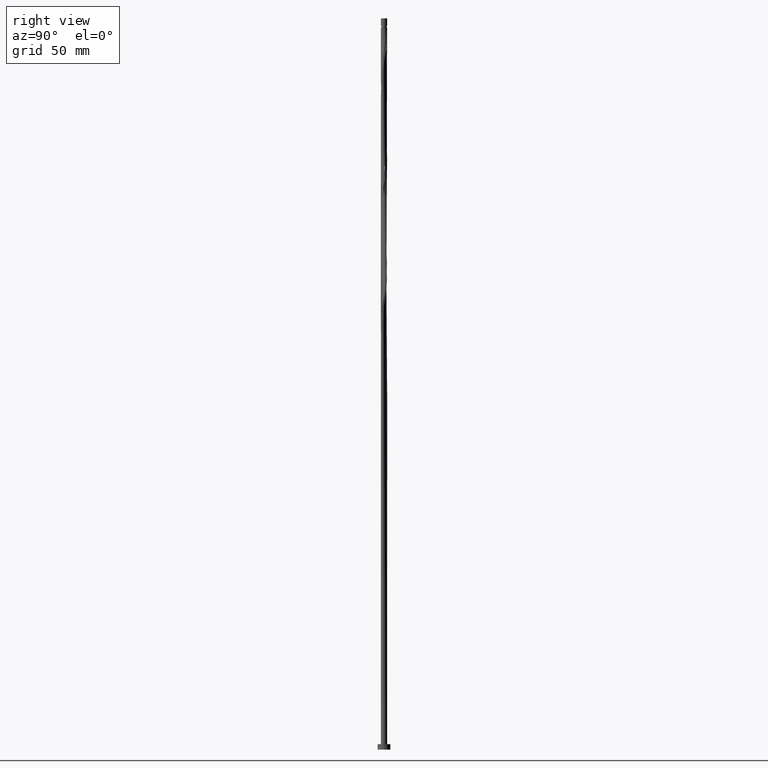
[diagram: clean part render]
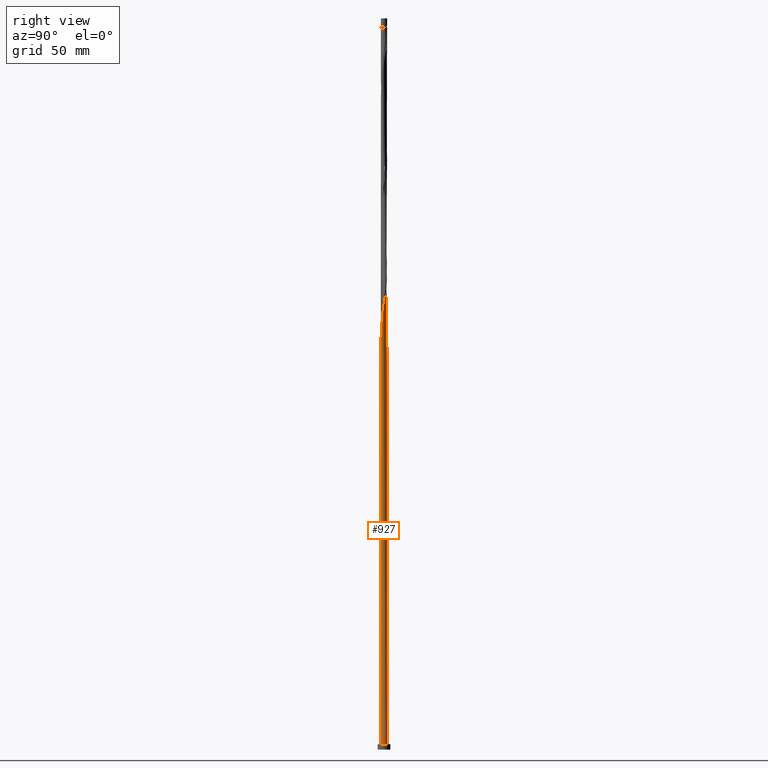
[diagram: same view with one face highlighted and labeled with its STEP entity id]
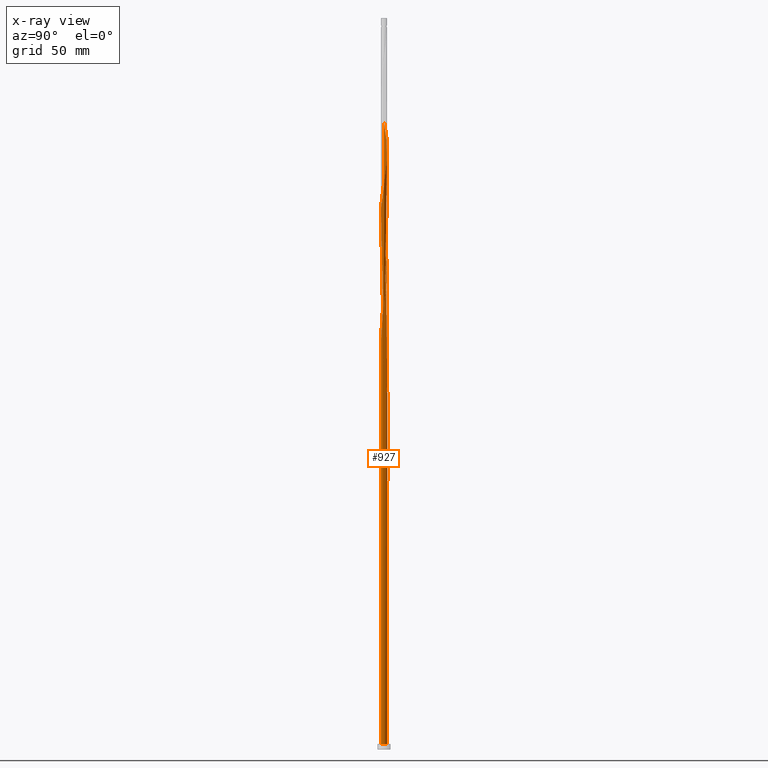
[diagram: x-ray of the same camera — body ghosted, the highlighted face saturated]
A machine part, right view. The second image highlights one B-rep face of the part: STEP entity #927.
The next image is the same camera in x-ray: the body ghosted, the highlighted face saturated — about 0% of this face is hidden behind the body in this view.
In plain terms, the highlighted cylindrical surface (bore or boss wall) has radius 1.75 mm, axis along (-0, -0, -1).
Its self-contained STEP definition (entity closure, byte-faithful):
#3 = CARTESIAN_POINT ( 'NONE',  ( -1.750000000000000000, -1.644325696273075192E-16, 213.9816421502443404 ) ) ;
#8 = CARTESIAN_POINT ( 'NONE',  ( 1.750000000000000000, 0.000000000000000000, 3.000000000000000000 ) ) ;
#17 = CARTESIAN_POINT ( 'NONE',  ( -1.289788318714685467, 1.182770515741389694, 201.8561989067228239 ) ) ;
#32 = CARTESIAN_POINT ( 'NONE',  ( -1.311110765996650995, 1.159089538943249176, 206.3006433511672526 ) ) ;
#55 = CARTESIAN_POINT ( 'NONE',  ( 0.1679918395066848369, -1.751602087786618744, 227.4117544622783669 ) ) ;
#64 = CARTESIAN_POINT ( 'NONE',  ( -1.432935985591729411, -1.021286244534576726, 216.3006433511672810 ) ) ;
#81 = CARTESIAN_POINT ( 'NONE',  ( 1.289788318714685245, -1.182770515741389694, 235.1895322400560815 ) ) ;
#87 = VERTEX_POINT ( 'NONE', #8 ) ;
#89 = CARTESIAN_POINT ( 'NONE',  ( 1.759566557101713169, -0.01602071186015805240, 309.6339766845006238 ) ) ;
#95 = EDGE_CURVE ( 'NONE', #1775, #1219, #1181, .T. ) ;
#101 = CARTESIAN_POINT ( 'NONE',  ( 1.523448115906757661, 0.8611653953452614862, 315.1895322400561099 ) ) ;
#109 = CARTESIAN_POINT ( 'NONE',  ( 1.289788318714685245, -1.182770515741389694, 301.8561989067228524 ) ) ;
#119 = CARTESIAN_POINT ( 'NONE',  ( 0.8936576220084644362, 1.515818982169525819, 254.0784211289450809 ) ) ;
#130 = EDGE_CURVE ( 'NONE', #1161, #1868, #234, .T. ) ;
#131 = CARTESIAN_POINT ( 'NONE',  ( 1.600927825098414914, -0.7303158432520420185, 305.1895322400561099 ) ) ;
#139 = CARTESIAN_POINT ( 'NONE',  ( -0.3482456029873203240, 1.715000000000002078, 328.5228655733894811 ) ) ;
#155 = CARTESIAN_POINT ( 'NONE',  ( -0.5589725712885340592, 1.668496567759837124, 200.7450877956117381 ) ) ;
#169 = CARTESIAN_POINT ( 'NONE',  ( -1.750000000000003109, 0.09970404053125621335, 209.1251643538167571 ) ) ;
#175 = LINE ( 'NONE', #1198, #889 ) ;
#177 = CARTESIAN_POINT ( 'NONE',  ( -1.659356368983974317, 0.5559104610567515703, 206.3006433511672526 ) ) ;
#183 = ORIENTED_EDGE ( 'NONE', *, *, #1315, .F. ) ;
#186 = CARTESIAN_POINT ( 'NONE',  ( -1.724446699451429366, 0.3501638371253399384, 211.8561989067228239 ) ) ;
#193 = CARTESIAN_POINT ( 'NONE',  ( -1.613960246221785244, -0.7010445461559460245, 214.0784211289450525 ) ) ;
#201 = CARTESIAN_POINT ( 'NONE',  ( -0.8936576220084635480, -1.515818982169526485, 220.7450877956116528 ) ) ;
#213 = CARTESIAN_POINT ( 'NONE',  ( 1.724446699451432474, 0.3501638371253398829, 245.1895322400561383 ) ) ;
#229 = CARTESIAN_POINT ( 'NONE',  ( -1.311110765996653882, -1.159089538943250286, 217.4117544622783669 ) ) ;
#234 =( BOUNDED_CURVE ( )  B_SPLINE_CURVE ( 2, ( #893, #909, #1330, #1750, #1043, #464, #17, #1477, #1620, #313, #177, #901, #444, #169, #745 ),
 .UNSPECIFIED., .F., .T. ) 
 B_SPLINE_CURVE_WITH_KNOTS ( ( 3, 2, 2, 2, 2, 2, 2, 3 ),
 ( 0.000000000000000000, 0.008333333333333303727, 0.01666666666666671848, 0.02500000000000002220, 0.03333333333333332593, 0.04166666666666662966, 0.05000000000000004441, 0.05452860127731142675 ),
 .UNSPECIFIED. ) 
 CURVE ( )  GEOMETRIC_REPRESENTATION_ITEM ( )  RATIONAL_B_SPLINE_CURVE ( ( 0.9090909090909996548, 0.9041108139712475955, 0.9090909090909996548, 0.9041108139712475955, 0.9090909090909996548, 0.9041108139712475955, 0.9090909090909996548, 0.9041108139712475955, 0.9090909090909996548, 0.9041108139712475955, 0.9090909090909996548, 0.9041108139712475955, 0.9090909090909996548, 0.9063845652765466498, 0.9066196499552878763 ) ) 
 REPRESENTATION_ITEM ( '' )  );
#240 = CARTESIAN_POINT ( 'NONE',  ( -0.5589725712885357245, -1.668496567759839122, 289.6339766845006238 ) ) ;
#251 = CARTESIAN_POINT ( 'NONE',  ( -1.724446699451432474, -0.3501638371253400495, 278.5228655733894243 ) ) ;
#260 = CARTESIAN_POINT ( 'NONE',  ( -1.189285546401577909, -1.296892833351923846, 285.1895322400561668 ) ) ;
#272 = CARTESIAN_POINT ( 'NONE',  ( -1.600927825098414914, 0.7303158432520415744, 271.8561989067227955 ) ) ;
#281 = CARTESIAN_POINT ( 'NONE',  ( -0.01593294872431327489, -1.749927467395422820, 292.9673100178339382 ) ) ;
#290 = CARTESIAN_POINT ( 'NONE',  ( -0.8659089350932497320, 1.531839694029684340, 331.8561989067226818 ) ) ;
#312 = CARTESIAN_POINT ( 'NONE',  ( 0.3482456029873208236, 1.714999999999998970, 195.1895322400561383 ) ) ;
#313 = CARTESIAN_POINT ( 'NONE',  ( -1.600927825098414914, 0.7303158432520415744, 205.1895322400561099 ) ) ;
#318 = CARTESIAN_POINT ( 'NONE',  ( 0.000000000000000000, 0.000000000000000000, 3.000000000000000000 ) ) ;
#324 = EDGE_CURVE ( 'NONE', #1161, #425, #783, .T. ) ;
#338 = CARTESIAN_POINT ( 'NONE',  ( -1.750000000000003109, 1.016492248605165992E-15, 209.7307556632012790 ) ) ;
#348 = CARTESIAN_POINT ( 'NONE',  ( -1.669203472836609414, -0.5256041916406432035, 212.9673100178338530 ) ) ;
#367 = CARTESIAN_POINT ( 'NONE',  ( 0.5284993664679552561, -1.678397912213386300, 229.6339766845005670 ) ) ;
#369 = ORIENTED_EDGE ( 'NONE', *, *, #1265, .T. ) ;
#377 = CARTESIAN_POINT ( 'NONE',  ( -0.1998577369553107552, -1.748252847004226451, 225.1895322400561383 ) ) ;
#386 = CARTESIAN_POINT ( 'NONE',  ( 0.3794151541219242252, 1.708374707382032343, 257.4117544622783953 ) ) ;
#396 = CARTESIAN_POINT ( 'NONE',  ( 1.311110765996654548, 1.159089538943249620, 317.4117544622783385 ) ) ;
#407 = CARTESIAN_POINT ( 'NONE',  ( 1.613960246221785688, 0.7010445461559451363, 314.0784211289450241 ) ) ;
#417 = CARTESIAN_POINT ( 'NONE',  ( -0.3482456029873203240, 1.715000000000002078, 261.8561989067227955 ) ) ;
#422 = CARTESIAN_POINT ( 'NONE',  ( -1.750000000000003109, 1.016492248605165992E-15, 209.7307556632012790 ) ) ;
#425 = VERTEX_POINT ( 'NONE', #910 ) ;
#427 = CARTESIAN_POINT ( 'NONE',  ( -0.1679918395066838932, 1.751602087786619188, 260.7450877956116528 ) ) ;
#436 = ORIENTED_EDGE ( 'NONE', *, *, #1534, .F. ) ;
#439 = CARTESIAN_POINT ( 'NONE',  ( -1.289788318714685467, 1.182770515741389694, 335.1895322400561668 ) ) ;
#444 = CARTESIAN_POINT ( 'NONE',  ( -1.738675734985623444, 0.1987628953608092941, 208.5228655733894811 ) ) ;
#460 = CARTESIAN_POINT ( 'NONE',  ( -0.1998577369553098948, 1.748252847004224009, 198.5228655733895096 ) ) ;
#464 = CARTESIAN_POINT ( 'NONE',  ( -1.165474128162897527, 1.318332730634499628, 200.7450877956116813 ) ) ;
#506 = CARTESIAN_POINT ( 'NONE',  ( 1.432935985591730299, 1.021286244534576282, 249.6339766845005386 ) ) ;
#522 = CARTESIAN_POINT ( 'NONE',  ( 1.659356368983974317, -0.5559104610567522364, 239.6339766845005954 ) ) ;
#531 = CARTESIAN_POINT ( 'NONE',  ( -1.432935985591729411, -1.021286244534576726, 282.9673100178339382 ) ) ;
#541 = CARTESIAN_POINT ( 'NONE',  ( 0.3482456029873204351, -1.715000000000002078, 295.1895322400561668 ) ) ;
#549 = CARTESIAN_POINT ( 'NONE',  ( 1.015691531628072797, -1.425086212332092206, 299.6339766845005101 ) ) ;
#561 = CARTESIAN_POINT ( 'NONE',  ( 1.738675734985623444, -0.1987628953608094051, 308.5228655733894811 ) ) ;
#574 = CARTESIAN_POINT ( 'NONE',  ( 1.165474128162897527, -1.318332730634499850, 300.7450877956115960 ) ) ;
#581 = CARTESIAN_POINT ( 'NONE',  ( -0.1679918395066838932, 1.751602087786619188, 327.4117544622783953 ) ) ;
#584 = ORIENTED_EDGE ( 'NONE', *, *, #1882, .T. ) ;
#586 = DIRECTION ( 'NONE',  ( 0.000000000000000000, -3.965082230804133296E-14, -1.000000000000000000 ) ) ;
#604 =( BOUNDED_CURVE ( )  B_SPLINE_CURVE ( 2, ( #338, #662, #928, #1536, #348, #193, #1098, #64, #229, #626, #789, #201, #1363, #1819, #800, #377, #1677, #55, #1250, #367, #1668, #636, #1377, #811, #81, #655, #1829, #1224, #522, #1503, #1108, #1244, #648, #213, #778, #1236, #1810, #506, #1515, #1091, #1421, #119, #1126, #678, #386, #1849, #836, #427, #417, #1011, #689, #668, #1292, #1579, #1870, #712, #1002, #272, #973, #1838, #1734, #1879, #1281, #251, #1589, #861, #1259, #531, #1268, #260, #1859, #1305, #1118, #240, #1433, #1692, #281, #1715, #541, #702, #1411, #1559, #549, #574, #109, #869, #1703, #131, #1136, #1546, #561, #89, #824, #1401, #1156, #407, #101, #993, #396, #1147, #985, #1569, #848, #1726, #1886, #1021, #1163, #581, #139, #1311, #1597, #290, #1744, #718, #439, #1442, #695, #1844, #832, #1564, #674, #1114, #665 ),
 .UNSPECIFIED., .F., .T. ) 
 B_SPLINE_CURVE_WITH_KNOTS ( ( 3, 2, 2, 2, 2, 2, 2, 2, 2, 2, 2, 2, 2, 2, 2, 2, 2, 2, 2, 2, 2, 2, 2, 2, 2, 2, 2, 2, 2, 2, 2, 2, 2, 2, 2, 2, 2, 2, 2, 2, 2, 2, 2, 2, 2, 2, 2, 2, 2, 2, 2, 2, 2, 2, 2, 2, 2, 2, 2, 2, 2, 3 ),
 ( 0.05452860127731142675, 0.05833333333333334814, 0.06666666666666665186, 0.07499999999999995559, 0.08333333333333337034, 0.09166666666666667407, 0.09999999999999997780, 0.1083333333333332815, 0.1166666666666666963, 0.1250000000000000000, 0.1333333333333333037, 0.1416666666666667185, 0.1500000000000000222, 0.1583333333333333259, 0.1666666666666666297, 0.1750000000000000444, 0.1833333333333333481, 0.1916666666666666519, 0.1999999999999999556, 0.2083333333333333703, 0.2166666666666666741, 0.2249999999999999778, 0.2333333333333332815, 0.2416666666666666963, 0.2500000000000000000, 0.2583333333333333037, 0.2666666666666667185, 0.2750000000000000222, 0.2833333333333333259, 0.2916666666666666297, 0.3000000000000000444, 0.3083333333333333481, 0.3166666666666666519, 0.3249999999999999556, 0.3333333333333333703, 0.3416666666666666741, 0.3499999999999999778, 0.3583333333333332815, 0.3666666666666666963, 0.3750000000000000000, 0.3833333333333333037, 0.3916666666666667185, 0.4000000000000000222, 0.4083333333333333259, 0.4166666666666666297, 0.4250000000000000444, 0.4333333333333333481, 0.4416666666666666519, 0.4499999999999999556, 0.4583333333333333703, 0.4666666666666666741, 0.4749999999999999778, 0.4833333333333332815, 0.4916666666666666963, 0.5000000000000000000, 0.5083333333333333037, 0.5166666666666666075, 0.5250000000000000222, 0.5333333333333333259, 0.5416666666666667407, 0.5500000000000000444, 0.5545286012773116280 ),
 .UNSPECIFIED. ) 
 CURVE ( )  GEOMETRIC_REPRESENTATION_ITEM ( )  RATIONAL_B_SPLINE_CURVE ( ( 0.9066196499552878763, 0.9068171577857006005, 0.9090909090909996548, 0.9041108139712475955, 0.9090909090909996548, 0.9041108139712475955, 0.9090909090909996548, 0.9041108139712475955, 0.9090909090909996548, 0.9041108139712475955, 0.9090909090909996548, 0.9041108139712475955, 0.9090909090909996548, 0.9041108139712475955, 0.9090909090909996548, 0.9041108139712475955, 0.9090909090909996548, 0.9041108139712475955, 0.9090909090909996548, 0.9041108139712475955, 0.9090909090909996548, 0.9041108139712475955, 0.9090909090909996548, 0.9041108139712475955, 0.9090909090909996548, 0.9041108139712475955, 0.9090909090909996548, 0.9041108139712475955, 0.9090909090909996548, 0.9041108139712475955, 0.9090909090909996548, 0.9041108139712475955, 0.9090909090909996548, 0.9041108139712475955, 0.9090909090909996548, 0.9041108139712475955, 0.9090909090909996548, 0.9041108139712475955, 0.9090909090909996548, 0.9041108139712475955, 0.9090909090909996548, 0.9041108139712475955, 0.9090909090909996548, 0.9041108139712475955, 0.9090909090909996548, 0.9041108139712475955, 0.9090909090909996548, 0.9041108139712475955, 0.9090909090909996548, 0.9041108139712475955, 0.9090909090909996548, 0.9041108139712475955, 0.9090909090909996548, 0.9041108139712475955, 0.9090909090909996548, 0.9041108139712475955, 0.9090909090909996548, 0.9041108139712475955, 0.9090909090909996548, 0.9041108139712475955, 0.9090909090909996548, 0.9041108139712475955, 0.9090909090909996548, 0.9041108139712475955, 0.9090909090909996548, 0.9041108139712475955, 0.9090909090909996548, 0.9041108139712475955, 0.9090909090909996548, 0.9041108139712475955, 0.9090909090909996548, 0.9041108139712475955, 0.9090909090909996548, 0.9041108139712475955, 0.9090909090909996548, 0.9041108139712475955, 0.9090909090909996548, 0.9041108139712475955, 0.9090909090909996548, 0.9041108139712475955, 0.9090909090909996548, 0.9041108139712475955, 0.9090909090909996548, 0.9041108139712475955, 0.9090909090909996548, 0.9041108139712475955, 0.9090909090909996548, 0.9041108139712475955, 0.9090909090909996548, 0.9041108139712475955, 0.9090909090909996548, 0.9041108139712475955, 0.9090909090909996548, 0.9041108139712475955, 0.9090909090909996548, 0.9041108139712475955, 0.9090909090909996548, 0.9041108139712475955, 0.9090909090909996548, 0.9041108139712475955, 0.9090909090909996548, 0.9041108139712475955, 0.9090909090909996548, 0.9041108139712475955, 0.9090909090909996548, 0.9041108139712475955, 0.9090909090909996548, 0.9041108139712475955, 0.9090909090909996548, 0.9041108139712475955, 0.9090909090909996548, 0.9041108139712475955, 0.9090909090909996548, 0.9041108139712475955, 0.9090909090909996548, 0.9041108139712475955, 0.9090909090909996548, 0.9041108139712475955, 0.9090909090909996548, 0.9041108139712475955, 0.9090909090909996548, 0.9063845652765465388, 0.9066196499552878763 ) ) 
 REPRESENTATION_ITEM ( '' )  );
#608 = CARTESIAN_POINT ( 'NONE',  ( -0.8936576220084612165, 1.515818982169524487, 202.9673100178339098 ) ) ;
#616 = DIRECTION ( 'NONE',  ( 1.000000000000000000, 0.000000000000000000, 0.000000000000000000 ) ) ;
#626 = CARTESIAN_POINT ( 'NONE',  ( -1.189285546401577909, -1.296892833351923846, 218.5228655733894811 ) ) ;
#636 = CARTESIAN_POINT ( 'NONE',  ( 0.8659089350932496210, -1.531839694029684562, 231.8561989067227955 ) ) ;
#648 = CARTESIAN_POINT ( 'NONE',  ( 1.742006628276573155, 0.1670715626325900982, 244.0784211289450241 ) ) ;
#655 = CARTESIAN_POINT ( 'NONE',  ( 1.414102509266473851, -1.047208300848280649, 236.3006433511671958 ) ) ;
#662 = CARTESIAN_POINT ( 'NONE',  ( -1.750000000000003109, -0.08372699875181277562, 210.2393041887653453 ) ) ;
#665 = CARTESIAN_POINT ( 'NONE',  ( -1.750000000000002887, -1.121131156549814895E-16, 343.0640889965346219 ) ) ;
#668 = CARTESIAN_POINT ( 'NONE',  ( -0.8659089350932497320, 1.531839694029684340, 265.1895322400561099 ) ) ;
#674 = CARTESIAN_POINT ( 'NONE',  ( -1.738675734985623444, 0.1987628953608092941, 341.8561989067227387 ) ) ;
#678 = CARTESIAN_POINT ( 'NONE',  ( 0.5589725712885361686, 1.668496567759839122, 256.3006433511671958 ) ) ;
#681 = CARTESIAN_POINT ( 'NONE',  ( 0.000000000000000000, 0.000000000000000000, 400.0000000000000000 ) ) ;
#689 = CARTESIAN_POINT ( 'NONE',  ( -0.6972041507806027161, 1.605118803121534876, 264.0784211289450241 ) ) ;
#695 = CARTESIAN_POINT ( 'NONE',  ( -1.507515167182444493, 0.8887620720501611116, 337.4117544622782816 ) ) ;
#702 = CARTESIAN_POINT ( 'NONE',  ( 0.5284993664679552561, -1.678397912213386300, 296.3006433511673094 ) ) ;
#712 = CARTESIAN_POINT ( 'NONE',  ( -1.414102509266474073, 1.047208300848280427, 269.6339766845006238 ) ) ;
#718 = CARTESIAN_POINT ( 'NONE',  ( -1.165474128162897527, 1.318332730634499628, 334.0784211289451378 ) ) ;
#735 = DIRECTION ( 'NONE',  ( 0.000000000000000000, 0.000000000000000000, 1.000000000000000000 ) ) ;
#742 = CARTESIAN_POINT ( 'NONE',  ( -1.742006628276570046, 0.1670715626325917080, 212.9673100178338814 ) ) ;
#745 = CARTESIAN_POINT ( 'NONE',  ( -1.750000000000003109, 1.016492248605165992E-15, 209.7307556632012790 ) ) ;
#751 = CARTESIAN_POINT ( 'NONE',  ( -1.750000000000000000, -1.644325696273075438E-16, 213.9816421502443404 ) ) ;
#752 = AXIS2_PLACEMENT_3D ( 'NONE', #681, #1551, #1887 ) ;
#778 = CARTESIAN_POINT ( 'NONE',  ( 1.669203472836609414, 0.5256041916406425374, 246.3006433511672242 ) ) ;
#783 = CIRCLE ( 'NONE', #1860, 1.750000000000000000 ) ;
#789 = CARTESIAN_POINT ( 'NONE',  ( -1.041471584205021061, -1.406355907760724611, 219.6339766845005386 ) ) ;
#800 = CARTESIAN_POINT ( 'NONE',  ( -0.3794151541219233370, -1.708374707382032787, 224.0784211289450525 ) ) ;
#811 = CARTESIAN_POINT ( 'NONE',  ( 1.165474128162897527, -1.318332730634499850, 234.0784211289449956 ) ) ;
#824 = CARTESIAN_POINT ( 'NONE',  ( 1.742006628276573155, 0.1670715626325900982, 310.7450877956116528 ) ) ;
#825 = ORIENTED_EDGE ( 'NONE', *, *, #130, .F. ) ;
#832 = CARTESIAN_POINT ( 'NONE',  ( -1.659356368983974317, 0.5559104610567515703, 339.6339766845005670 ) ) ;
#836 = CARTESIAN_POINT ( 'NONE',  ( 0.01593294872431348305, 1.749927467395422820, 259.6339766845006238 ) ) ;
#848 = CARTESIAN_POINT ( 'NONE',  ( 0.7263150966484999138, 1.592157774964682915, 321.8561989067227387 ) ) ;
#861 = CARTESIAN_POINT ( 'NONE',  ( -1.613960246221785244, -0.7010445461559460245, 280.7450877956116528 ) ) ;
#869 = CARTESIAN_POINT ( 'NONE',  ( 1.414102509266473851, -1.047208300848280649, 302.9673100178339382 ) ) ;
#889 = VECTOR ( 'NONE', #916, 1000.000000000000000 ) ;
#893 = CARTESIAN_POINT ( 'NONE',  ( -0.3482456029873203240, 1.715000000000002078, 195.1895322400561383 ) ) ;
#901 = CARTESIAN_POINT ( 'NONE',  ( -1.717784912869533498, 0.3815050788614613997, 207.4117544622783953 ) ) ;
#907 = DIRECTION ( 'NONE',  ( 0.000000000000000000, 0.000000000000000000, 1.000000000000000000 ) ) ;
#909 = CARTESIAN_POINT ( 'NONE',  ( -0.5284993664679559222, 1.678397912213385412, 196.3006433511672242 ) ) ;
#910 = CARTESIAN_POINT ( 'NONE',  ( 0.3482456029873207681, 1.714999999999998970, 195.1895322400561383 ) ) ;
#914 = ORIENTED_EDGE ( 'NONE', *, *, #1315, .T. ) ;
#916 = DIRECTION ( 'NONE',  ( -0.000000000000000000, -0.000000000000000000, -1.000000000000000000 ) ) ;
#927 = ADVANCED_FACE ( 'NONE', ( #1562 ), #1306, .T. ) ;
#928 = CARTESIAN_POINT ( 'NONE',  ( -1.742006628276573155, -0.1670715626325910974, 210.7450877956116813 ) ) ;
#973 = CARTESIAN_POINT ( 'NONE',  ( -1.659356368983974317, 0.5559104610567515703, 272.9673100178339951 ) ) ;
#982 = VECTOR ( 'NONE', #1167, 1000.000000000000000 ) ;
#985 = CARTESIAN_POINT ( 'NONE',  ( 1.041471584205021284, 1.406355907760724611, 319.6339766845006807 ) ) ;
#993 = CARTESIAN_POINT ( 'NONE',  ( 1.432935985591730299, 1.021286244534576282, 316.3006433511671958 ) ) ;
#1002 = CARTESIAN_POINT ( 'NONE',  ( -1.507515167182444493, 0.8887620720501611116, 270.7450877956117097 ) ) ;
#1011 = CARTESIAN_POINT ( 'NONE',  ( -0.5284993664679559222, 1.678397912213385412, 262.9673100178339382 ) ) ;
#1021 = CARTESIAN_POINT ( 'NONE',  ( 0.1998577369553109218, 1.748252847004226451, 325.1895322400561099 ) ) ;
#1024 = CARTESIAN_POINT ( 'NONE',  ( -1.613960246221781913, 0.7010445461559460245, 209.6339766845005954 ) ) ;
#1043 = CARTESIAN_POINT ( 'NONE',  ( -1.015691531628073463, 1.425086212332091762, 199.6339766845005670 ) ) ;
#1050 = CARTESIAN_POINT ( 'NONE',  ( -1.669203472836606084, 0.5256041916406430925, 210.7450877956116813 ) ) ;
#1053 = CARTESIAN_POINT ( 'NONE',  ( -1.750000000000000000, 0.000000000000000000, 400.0000000000000000 ) ) ;
#1091 = CARTESIAN_POINT ( 'NONE',  ( 1.189285546401578353, 1.296892833351923402, 251.8561989067228524 ) ) ;
#1098 = CARTESIAN_POINT ( 'NONE',  ( -1.523448115906757661, -0.8611653953452617083, 215.1895322400561668 ) ) ;
#1108 = CARTESIAN_POINT ( 'NONE',  ( 1.738675734985623444, -0.1987628953608094051, 241.8561989067227955 ) ) ;
#1114 = CARTESIAN_POINT ( 'NONE',  ( -1.750000000000003775, 0.09970404053125181409, 342.4584976871501567 ) ) ;
#1118 = CARTESIAN_POINT ( 'NONE',  ( -0.7263150966484996918, -1.592157774964682915, 288.5228655733895380 ) ) ;
#1119 = VERTEX_POINT ( 'NONE', #1178 ) ;
#1126 = CARTESIAN_POINT ( 'NONE',  ( 0.7263150966484999138, 1.592157774964682915, 255.1895322400561383 ) ) ;
#1136 = CARTESIAN_POINT ( 'NONE',  ( 1.659356368983974317, -0.5559104610567522364, 306.3006433511671958 ) ) ;
#1147 = CARTESIAN_POINT ( 'NONE',  ( 1.189285546401578353, 1.296892833351923402, 318.5228655733894243 ) ) ;
#1152 = CARTESIAN_POINT ( 'NONE',  ( 0.000000000000000000, 0.000000000000000000, 3.000000000000000000 ) ) ;
#1156 = CARTESIAN_POINT ( 'NONE',  ( 1.669203472836609414, 0.5256041916406425374, 312.9673100178339382 ) ) ;
#1161 = VERTEX_POINT ( 'NONE', #1762 ) ;
#1163 = CARTESIAN_POINT ( 'NONE',  ( 0.01593294872431348305, 1.749927467395422820, 326.3006433511672526 ) ) ;
#1167 = DIRECTION ( 'NONE',  ( -0.000000000000000000, -0.000000000000000000, -1.000000000000000000 ) ) ;
#1178 = CARTESIAN_POINT ( 'NONE',  ( -1.750000000000000000, 0.000000000000000000, 3.000000000000000000 ) ) ;
#1181 = LINE ( 'NONE', #1053, #982 ) ;
#1187 = CARTESIAN_POINT ( 'NONE',  ( -0.7263150966484976934, 1.592157774964680916, 201.8561989067228239 ) ) ;
#1198 = CARTESIAN_POINT ( 'NONE',  ( -1.750000000000000000, 0.000000000000000000, 400.0000000000000000 ) ) ;
#1204 = EDGE_CURVE ( 'NONE', #1219, #425, #1512, .T. ) ;
#1219 = VERTEX_POINT ( 'NONE', #3 ) ;
#1224 = CARTESIAN_POINT ( 'NONE',  ( 1.600927825098414914, -0.7303158432520420185, 238.5228655733894811 ) ) ;
#1236 = CARTESIAN_POINT ( 'NONE',  ( 1.613960246221785688, 0.7010445461559451363, 247.4117544622783669 ) ) ;
#1244 = CARTESIAN_POINT ( 'NONE',  ( 1.759566557101713169, -0.01602071186015805240, 242.9673100178338530 ) ) ;
#1250 = CARTESIAN_POINT ( 'NONE',  ( 0.3482456029873204351, -1.715000000000002078, 228.5228655733894527 ) ) ;
#1259 = CARTESIAN_POINT ( 'NONE',  ( -1.523448115906757661, -0.8611653953452617083, 281.8561989067226818 ) ) ;
#1265 = EDGE_CURVE ( 'NONE', #1119, #87, #1705, .T. ) ;
#1268 = CARTESIAN_POINT ( 'NONE',  ( -1.311110765996653882, -1.159089538943250286, 284.0784211289449672 ) ) ;
#1281 = CARTESIAN_POINT ( 'NONE',  ( -1.742006628276573155, -0.1670715626325910974, 277.4117544622783953 ) ) ;
#1289 = AXIS2_PLACEMENT_3D ( 'NONE', #318, #907, #616 ) ;
#1292 = CARTESIAN_POINT ( 'NONE',  ( -1.015691531628073463, 1.425086212332091762, 266.3006433511672526 ) ) ;
#1305 = CARTESIAN_POINT ( 'NONE',  ( -0.8936576220084635480, -1.515818982169526485, 287.4117544622783385 ) ) ;
#1306 = CYLINDRICAL_SURFACE ( 'NONE', #752, 1.750000000000000000 ) ;
#1311 = CARTESIAN_POINT ( 'NONE',  ( -0.5284993664679559222, 1.678397912213385412, 329.6339766845005101 ) ) ;
#1314 = CARTESIAN_POINT ( 'NONE',  ( 0.000000000000000000, 0.000000000000000000, 195.1895322400561952 ) ) ;
#1315 = EDGE_CURVE ( 'NONE', #1868, #1119, #175, .T. ) ;
#1319 = ORIENTED_EDGE ( 'NONE', *, *, #1204, .F. ) ;
#1320 = CARTESIAN_POINT ( 'NONE',  ( -1.750000000000000000, 0.08372699875181062457, 213.4730936246802742 ) ) ;
#1330 = CARTESIAN_POINT ( 'NONE',  ( -0.6972041507806027161, 1.605118803121534876, 197.4117544622783669 ) ) ;
#1363 = CARTESIAN_POINT ( 'NONE',  ( -0.7263150966484996918, -1.592157774964682915, 221.8561989067228239 ) ) ;
#1377 = CARTESIAN_POINT ( 'NONE',  ( 1.015691531628072797, -1.425086212332092206, 232.9673100178339382 ) ) ;
#1401 = CARTESIAN_POINT ( 'NONE',  ( 1.724446699451432474, 0.3501638371253398829, 311.8561989067226818 ) ) ;
#1411 = CARTESIAN_POINT ( 'NONE',  ( 0.6972041507806022720, -1.605118803121534876, 297.4117544622782816 ) ) ;
#1421 = CARTESIAN_POINT ( 'NONE',  ( 1.041471584205021284, 1.406355907760724611, 252.9673100178339098 ) ) ;
#1433 = CARTESIAN_POINT ( 'NONE',  ( -0.3794151541219233370, -1.708374707382032787, 290.7450877956116528 ) ) ;
#1442 = CARTESIAN_POINT ( 'NONE',  ( -1.414102509266474073, 1.047208300848280427, 336.3006433511671958 ) ) ;
#1460 = CARTESIAN_POINT ( 'NONE',  ( -1.523448115906754330, 0.8611653953452605981, 208.5228655733894527 ) ) ;
#1468 = CARTESIAN_POINT ( 'NONE',  ( -1.432935985591727190, 1.021286244534576060, 207.4117544622783953 ) ) ;
#1474 = CARTESIAN_POINT ( 'NONE',  ( -1.189285546401575688, 1.296892833351922736, 205.1895322400561099 ) ) ;
#1477 = CARTESIAN_POINT ( 'NONE',  ( -1.414102509266474073, 1.047208300848280427, 202.9673100178339666 ) ) ;
#1503 = CARTESIAN_POINT ( 'NONE',  ( 1.717784912869533498, -0.3815050788614625099, 240.7450877956117097 ) ) ;
#1512 =( BOUNDED_CURVE ( )  B_SPLINE_CURVE ( 2, ( #751, #1320, #742, #186, #1050, #1024, #1460, #1468, #32, #1474, #1746, #608, #1187, #155, #1598, #460, #1618, #1772, #312 ),
 .UNSPECIFIED., .F., .T. ) 
 B_SPLINE_CURVE_WITH_KNOTS ( ( 3, 2, 2, 2, 2, 2, 2, 2, 2, 3 ),
 ( 0.9295286012773112949, 0.9333333333333333481, 0.9416666666666666519, 0.9499999999999999556, 0.9583333333333333703, 0.9666666666666666741, 0.9749999999999999778, 0.9833333333333332815, 0.9916666666666666963, 1.000000000000000000 ),
 .UNSPECIFIED. ) 
 CURVE ( )  GEOMETRIC_REPRESENTATION_ITEM ( )  RATIONAL_B_SPLINE_CURVE ( ( 0.9066196499552807708, 0.9068171577856933840, 0.9090909090909925494, 0.9041108139712406011, 0.9090909090909925494, 0.9041108139712406011, 0.9090909090909925494, 0.9041108139712406011, 0.9090909090909925494, 0.9041108139712406011, 0.9090909090909925494, 0.9041108139712406011, 0.9090909090909925494, 0.9041108139712406011, 0.9090909090909925494, 0.9041108139712406011, 0.9090909090909925494, 0.9041108139712406011, 0.9090909090909925494 ) ) 
 REPRESENTATION_ITEM ( '' )  );
#1515 = CARTESIAN_POINT ( 'NONE',  ( 1.311110765996654548, 1.159089538943249620, 250.7450877956117097 ) ) ;
#1534 = EDGE_CURVE ( 'NONE', #1868, #1775, #604, .T. ) ;
#1536 = CARTESIAN_POINT ( 'NONE',  ( -1.724446699451432474, -0.3501638371253400495, 211.8561989067228239 ) ) ;
#1546 = CARTESIAN_POINT ( 'NONE',  ( 1.717784912869533498, -0.3815050788614625099, 307.4117544622783953 ) ) ;
#1551 = DIRECTION ( 'NONE',  ( -0.000000000000000000, -0.000000000000000000, -1.000000000000000000 ) ) ;
#1552 = CIRCLE ( 'NONE', #1770, 1.750000000000000000 ) ;
#1559 = CARTESIAN_POINT ( 'NONE',  ( 0.8659089350932496210, -1.531839694029684562, 298.5228655733894243 ) ) ;
#1562 = FACE_OUTER_BOUND ( 'NONE', #1663, .T. ) ;
#1564 = CARTESIAN_POINT ( 'NONE',  ( -1.717784912869533498, 0.3815050788614613997, 340.7450877956117097 ) ) ;
#1569 = CARTESIAN_POINT ( 'NONE',  ( 0.8936576220084644362, 1.515818982169525819, 320.7450877956117665 ) ) ;
#1579 = CARTESIAN_POINT ( 'NONE',  ( -1.165474128162897527, 1.318332730634499628, 267.4117544622783953 ) ) ;
#1589 = CARTESIAN_POINT ( 'NONE',  ( -1.669203472836609414, -0.5256041916406432035, 279.6339766845005670 ) ) ;
#1597 = CARTESIAN_POINT ( 'NONE',  ( -0.6972041507806027161, 1.605118803121534876, 330.7450877956116528 ) ) ;
#1598 = CARTESIAN_POINT ( 'NONE',  ( -0.3794151541219218382, 1.708374707382030344, 199.6339766845005954 ) ) ;
#1618 = CARTESIAN_POINT ( 'NONE',  ( -0.01593294872431220977, 1.749927467395419933, 197.4117544622784237 ) ) ;
#1620 = CARTESIAN_POINT ( 'NONE',  ( -1.507515167182444493, 0.8887620720501611116, 204.0784211289449956 ) ) ;
#1663 = EDGE_LOOP ( 'NONE', ( #1681, #436, #914, #369, #584, #183, #825, #1835, #1319 ) ) ;
#1668 = CARTESIAN_POINT ( 'NONE',  ( 0.6972041507806022720, -1.605118803121534876, 230.7450877956117097 ) ) ;
#1677 = CARTESIAN_POINT ( 'NONE',  ( -0.01593294872431327489, -1.749927467395422820, 226.3006433511671673 ) ) ;
#1681 = ORIENTED_EDGE ( 'NONE', *, *, #95, .F. ) ;
#1692 = CARTESIAN_POINT ( 'NONE',  ( -0.1998577369553107552, -1.748252847004226451, 291.8561989067227955 ) ) ;
#1703 = CARTESIAN_POINT ( 'NONE',  ( 1.507515167182444493, -0.8887620720501615557, 304.0784211289450809 ) ) ;
#1705 = CIRCLE ( 'NONE', #1289, 1.750000000000000000 ) ;
#1715 = CARTESIAN_POINT ( 'NONE',  ( 0.1679918395066848369, -1.751602087786618744, 294.0784211289450241 ) ) ;
#1726 = CARTESIAN_POINT ( 'NONE',  ( 0.5589725712885361686, 1.668496567759839122, 322.9673100178339382 ) ) ;
#1729 = CARTESIAN_POINT ( 'NONE',  ( -1.750000000000002887, -1.121131156549814895E-16, 343.0640889965346219 ) ) ;
#1734 = CARTESIAN_POINT ( 'NONE',  ( -1.738675734985623444, 0.1987628953608092941, 275.1895322400560531 ) ) ;
#1744 = CARTESIAN_POINT ( 'NONE',  ( -1.015691531628073463, 1.425086212332091762, 332.9673100178339382 ) ) ;
#1746 = CARTESIAN_POINT ( 'NONE',  ( -1.041471584205018841, 1.406355907760723500, 204.0784211289450241 ) ) ;
#1750 = CARTESIAN_POINT ( 'NONE',  ( -0.8659089350932497320, 1.531839694029684340, 198.5228655733894811 ) ) ;
#1762 = CARTESIAN_POINT ( 'NONE',  ( -0.3482456029873202685, 1.715000000000002078, 195.1895322400561383 ) ) ;
#1770 = AXIS2_PLACEMENT_3D ( 'NONE', #1152, #735, #1875 ) ;
#1772 = CARTESIAN_POINT ( 'NONE',  ( 0.1679918395066853365, 1.751602087786616080, 196.3006433511672242 ) ) ;
#1775 = VERTEX_POINT ( 'NONE', #1729 ) ;
#1810 = CARTESIAN_POINT ( 'NONE',  ( 1.523448115906757661, 0.8611653953452614862, 248.5228655733894243 ) ) ;
#1819 = CARTESIAN_POINT ( 'NONE',  ( -0.5589725712885357245, -1.668496567759839122, 222.9673100178339382 ) ) ;
#1829 = CARTESIAN_POINT ( 'NONE',  ( 1.507515167182444493, -0.8887620720501615557, 237.4117544622783953 ) ) ;
#1835 = ORIENTED_EDGE ( 'NONE', *, *, #324, .T. ) ;
#1838 = CARTESIAN_POINT ( 'NONE',  ( -1.717784912869533498, 0.3815050788614613997, 274.0784211289449104 ) ) ;
#1844 = CARTESIAN_POINT ( 'NONE',  ( -1.600927825098414914, 0.7303158432520415744, 338.5228655733894811 ) ) ;
#1849 = CARTESIAN_POINT ( 'NONE',  ( 0.1998577369553109218, 1.748252847004226451, 258.5228655733894243 ) ) ;
#1856 = DIRECTION ( 'NONE',  ( 0.000000000000000000, 1.000000000000000000, -4.758098676964956422E-14 ) ) ;
#1859 = CARTESIAN_POINT ( 'NONE',  ( -1.041471584205021061, -1.406355907760724611, 286.3006433511671958 ) ) ;
#1860 = AXIS2_PLACEMENT_3D ( 'NONE', #1314, #586, #1856 ) ;
#1868 = VERTEX_POINT ( 'NONE', #422 ) ;
#1870 = CARTESIAN_POINT ( 'NONE',  ( -1.289788318714685467, 1.182770515741389694, 268.5228655733893675 ) ) ;
#1875 = DIRECTION ( 'NONE',  ( 1.000000000000000000, 0.000000000000000000, 0.000000000000000000 ) ) ;
#1879 = CARTESIAN_POINT ( 'NONE',  ( -1.759566557101713169, 0.01602071186015746260, 276.3006433511672526 ) ) ;
#1882 = EDGE_CURVE ( 'NONE', #87, #1119, #1552, .T. ) ;
#1886 = CARTESIAN_POINT ( 'NONE',  ( 0.3794151541219242252, 1.708374707382032343, 324.0784211289450241 ) ) ;
#1887 = DIRECTION ( 'NONE',  ( -1.000000000000000000, 0.000000000000000000, 0.000000000000000000 ) ) ;